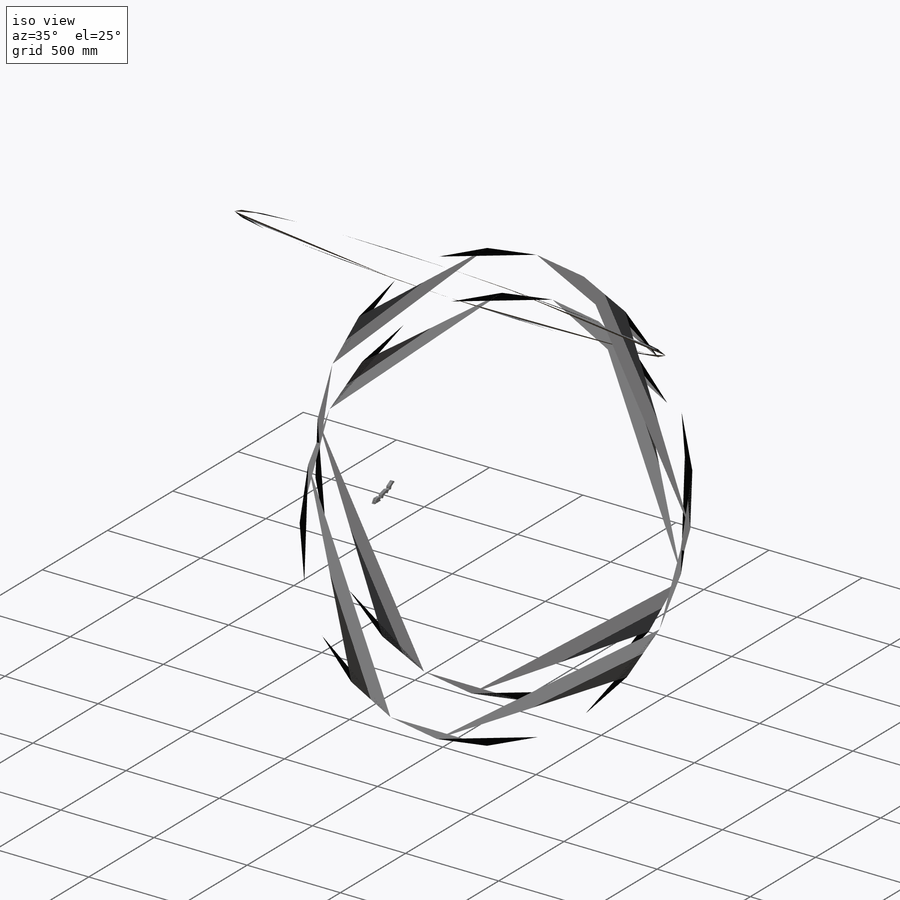
[diagram: iso view]
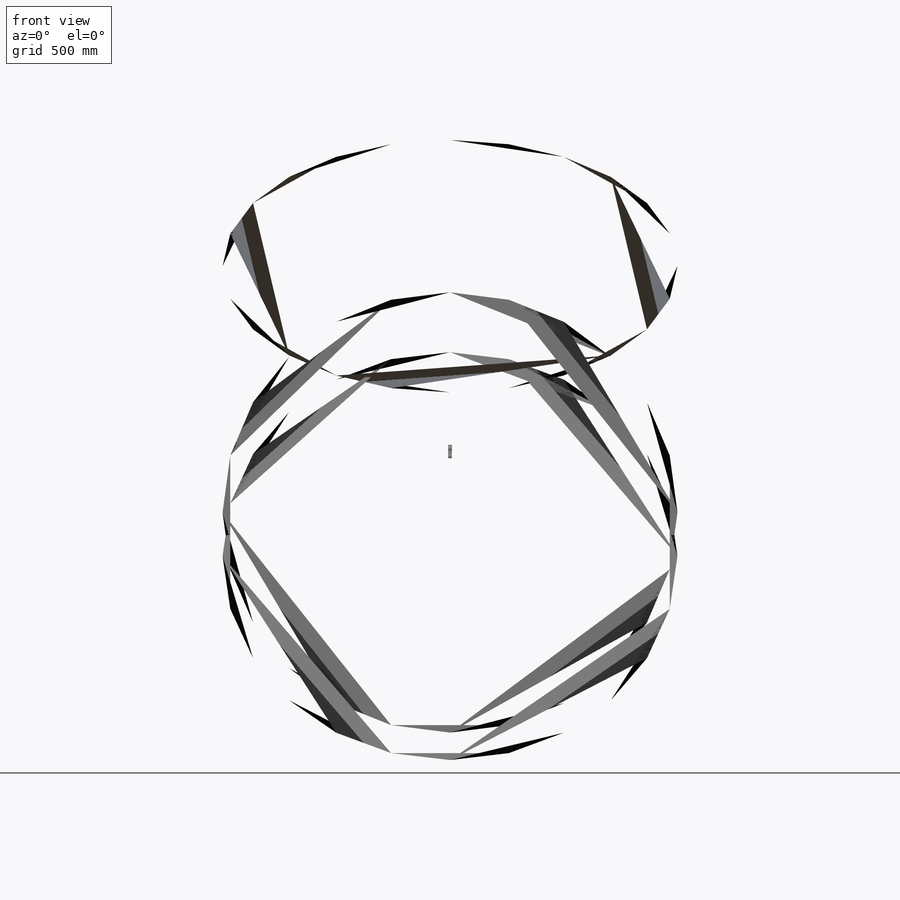
[diagram: front view]
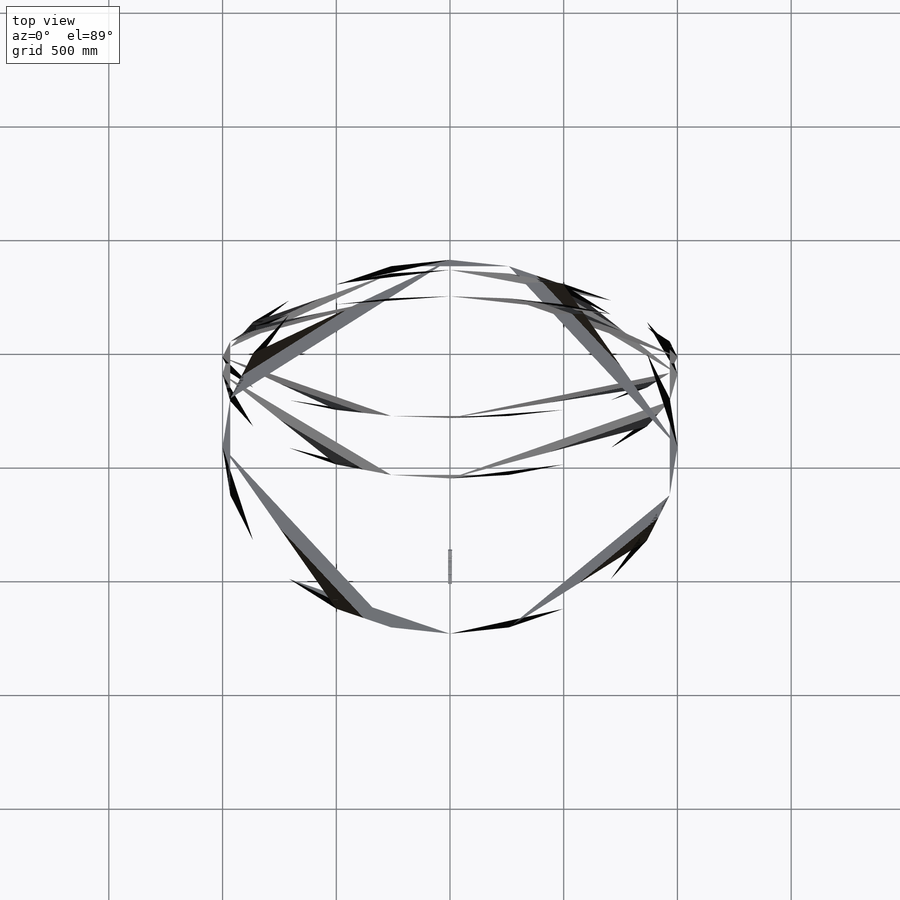
[diagram: top view]
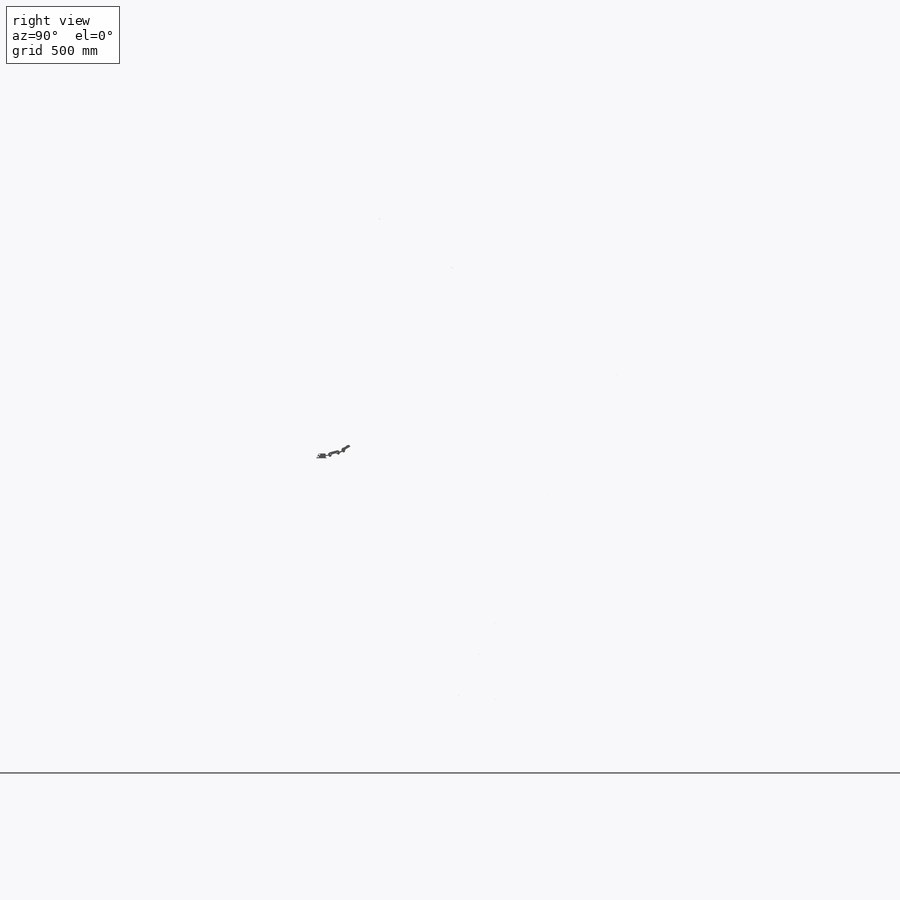
[diagram: right view]
SOLIDWORKS PART (.sldprt)
format: sldprt  version: not decoded by parser v0  size: 2,089,984 bytes
history: native  units: mm
features: sketch x29, cut_extrude x15, extrude x14, chamfer x3, fillet x3, material x1, boolean_combine x1 + 2 further entries (+26 scaffold rows collapsed; 9 parser-record rows omitted)
feature tree (103):
  scaffold x26  (default folders/planes/origin — collapsed)
  material  "ABS"
  "params_finger_t"
  parser-record x9  (decoder bookkeeping rows leaked as tree rows — omitted from the tree; the rows remain in map.json)
  "params_print"
  sketch  "Sketch1"  dims[c1.D1=~14.78575mm c1.D2=28.285mm c1.D3=12.0mm c1.D4=12.0mm c1.D5=~32.598455mm c2.D5=15.0deg c2.D6=~17.356083mm c3.D6=15.0deg c3.D7=62.5mm c3.D8=37.5mm c3.D9=5.65mm c3.D10=~7.168137mm c3.D11=18.0mm c3.D12=18.0mm c3.D13=18.0mm c3.D14=1.5mm]
  extrude  "Finger Frame"  Depth=16mm
  sketch  "Sketch3"  dims[D4=1.5mm D5=2.25mm D1=0.7mm D2=0.7mm D3=3.0mm]
  cut_extrude  "Cavity - Flexures"  [1 undecoded]
  sketch  "Sketch4"  dims[D1=1.5mm]
  extrude  "Flexure Anchors"  [1 undecoded]
  sketch  "Sketch5"  dims[c1.D4=3.175mm c1.D7=6.35mm c1.D1=1.5mm c1.D2=1.5mm c1.D3=8.0mm c1.D5=6.8375mm c1.D6=~48.878418mm c2.D6=40.0deg c3.D6=3.0mm c3.D8=~10.705912mm c4.D8=55.0deg c4.D9=1.0mm c4.D10=1.5mm c4.D11=1.5mm c4.D12=8.0mm]
  cut_extrude  "Tendon Routing Features"  [1 undecoded]
  sketch  "Sketch6"  dims[c1.D1=3.0mm c1.D2=4.675mm c1.D3=1.5mm c2.D1=1.0mm]
  cut_extrude  "Clearance - Base Tendon"  Depth=4.5mm
  sketch  "Sketch7"  dims[D2=1.5mm D1=1.5mm]
  cut_extrude  "Tendon Port 1"  Depth=0.75mm
  sketch  "Sketch8"  dims[D2=1.5mm D1=1.5mm]
  cut_extrude  "Tendon Port 2"  Depth=0.75mm
  sketch  "Sketch9"  dims[D1=1.5mm]
  cut_extrude  "Tendon Port 3"  Depth=0.75mm
  chamfer  "Tendon Port Contouring"  Distance=0.75mm Angle=45deg
  sketch  "Sketch10"  dims[D1=2.3mm D2=2.95mm D3=2.3mm]
  extrude  "Finger Pad Outline"  [1 undecoded]
  sketch  "Sketch11"  dims[c1.D1=8.5mm c1.D2=~28.859238mm c2.D1=0.7mm]
  cut_extrude  "Finger Outline"  [1 undecoded]
  sketch  "Sketch12"  dims[c1.D3=1.0mm c1.D4=~1.732051mm c2.D3=25.5mm c2.D1=0.7mm c2.D2=1.6mm]
  cut_extrude  "Cavity - Finger Pads"  [1 undecoded]
  sketch  "Sketch13"
  cut_extrude  "Back Cutaway"  Depth=10mm
  sketch  "Sketch14"
  extrude  "Pad Hooks"  Depth=13mm
  sketch  "Sketch15"  dims[D1=0.7mm D2=1.5mm D4=2.2mm D5=~35.143278mm D7=2.2mm D8=~24.18954mm D3=16.0]
  extrude  "Pad Ridges"  [1 undecoded]
  sketch  "Sketch28"  dims[D1=2.0mm D2=2.0mm D3=2.0mm D4=2.0mm D5=2.0mm D6=2.0mm D7=2.0mm D8=2.0mm]
  extrude  "PCB Pegs - Face"  Depth=1.5mm
  sketch  "Sketch29"  dims[c1.D3=2.0mm c1.D5=2.0mm c1.D1=1.0mm c1.D2=1.0mm c1.D4=30.0mm c2.D2=6.5mm c2.D6=1.5mm c2.D7=1.0mm]
  extrude  "PCB Pegs - Side 1"  Depth=3mm
  sketch  "Sketch30"  dims[c1.D2=2.0mm c1.D4=2.0mm c1.D6=2.2mm c1.D7=2.2mm c1.D1=1.0mm c1.D3=1.0mm c1.D5=30.0mm c2.D1=6.5mm c2.D8=~6.62901mm c3.D8=90.0deg c4.D8=1.5mm c4.D9=6.5mm c4.D10=9.77mm c4.D11=1.0mm]
  cut_extrude  "PCB Peg Holes - Side 2"  Depth=3mm
  fillet  "Finger Contouring"  Radius=5mm
  sketch  "Sketch18"  dims[D1=4.0mm]
  extrude  "Base Tabs"  Depth=3mm
  sketch  "Sketch19"  dims[c1.D1=6.35mm c1.D2=3.175mm c2.D1=0.075mm c2.D2=0.075mm]
  cut_extrude  "Print Clearance - Pins"  [1 undecoded]
  fillet  "Print Clearance - Contouring"  Radius=1mm
  sketch  "Sketch16"  dims[D1=5.0mm]
  extrude  "Insert Base"  [1 undecoded]
  sketch  "Sketch17"  dims[D1=3.7mm]
  cut_extrude  "Clearance - Insert"  Depth=4.5mm
  chamfer  "Track Chamfer"  Distance=2.5mm Angle=45deg
  sketch  "Sketch20"  dims[D1=0.0mm D2=0.0mm D3=0.0mm D4=0.0mm]
  extrude  "Pad Material"  [1 undecoded]
  sketch  "Sketch21"  dims[D1=0.0mm D2=0.0mm]
  cut_extrude  "Wall Removal"  [1 undecoded]
  sketch  "Sketch22"  dims[D1=0.0mm D2=6.0mm]
  extrude  "Mold Base"  Depth=3mm
  sketch  "Sketch23"  dims[D1=0.0mm D2=3.0mm]
  extrude  "Mold Outer Wall"  [1 undecoded]
  sketch  "Sketch24"  dims[c1.D1=0.0mm c1.D2=0.15mm c1.D3=0.15mm c1.D4=0.15mm c2.D2=0.15mm]
  cut_extrude  "Clearance - Inner Mold"  [1 undecoded]
  boolean_combine  "Combine - Mold"
  sketch  "Sketch26"  dims[c1.D1=0.0mm c1.D2=0.075mm c2.D1=0.075mm c2.D2=0.075mm]
  extrude  "Mold Outermost Wall"  Depth=3mm
  fillet  "Print Clearance - Mold Lip"  Radius=1mm
  sketch  "Sketch25"
  cut_extrude  "Mold Split"  [1 undecoded]
  sketch  "Sketch27"  dims[D1=3.0mm]
  extrude  "Mold Tab"  Depth=10mm
  chamfer  "Mold Tab Chamfer"  Distance=3mm Angle=45deg
decode coverage: 47 of 65 modeling features carry decoded parameters; 2 rows unclassified (native names shown)
note: ~ marks probable driven/reference dimensions
note: 14 parameter values undecoded
summary: no parameter record found for 14 features
note: suppression state not decoded; provenance and decode notes live in map.json
